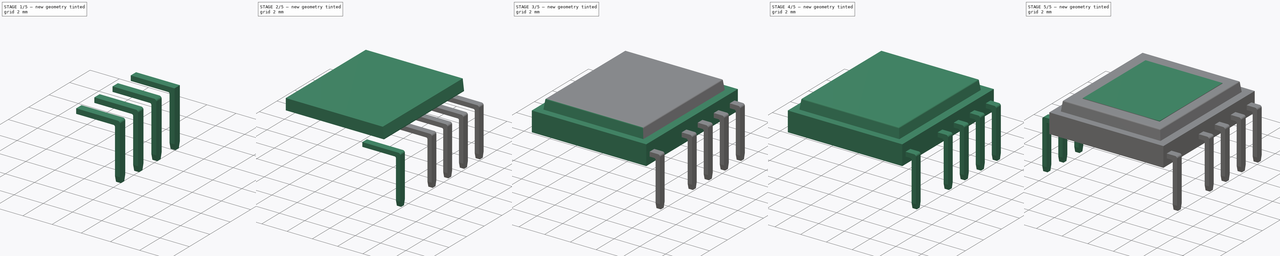
[diagram: build sequence overview — one tinted view per stage of 5, left to right]
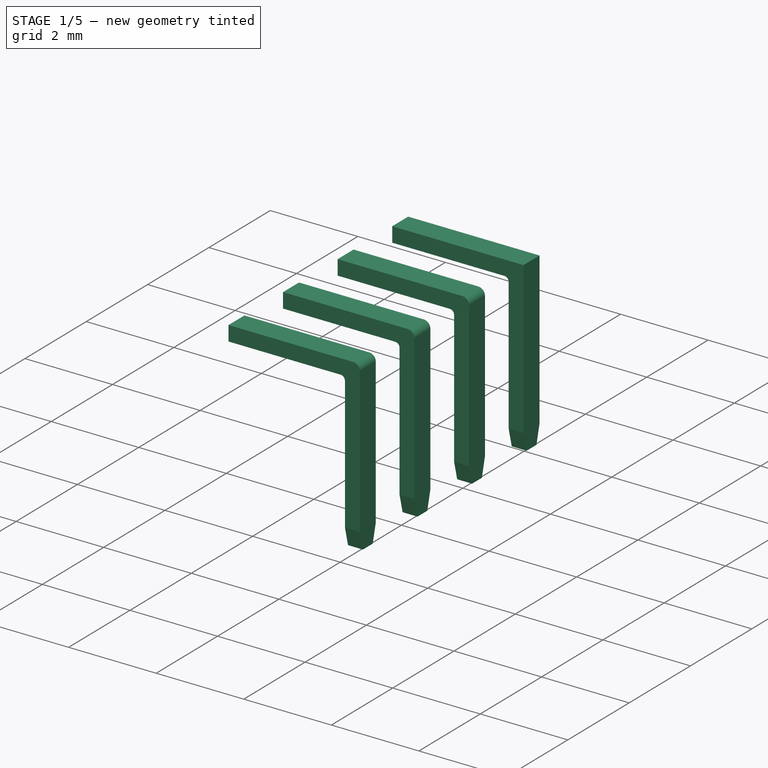
[diagram: stage 1 of 5 — iso view after this stage's code; geometry added in this stage tinted green]
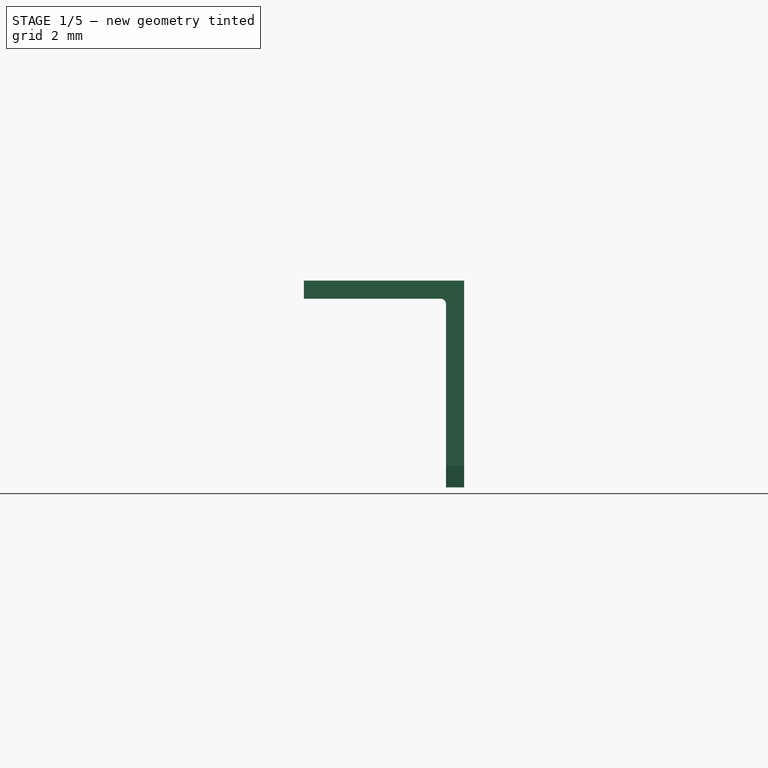
[diagram: stage 1 of 5 — front view after this stage's code; geometry added in this stage tinted green]
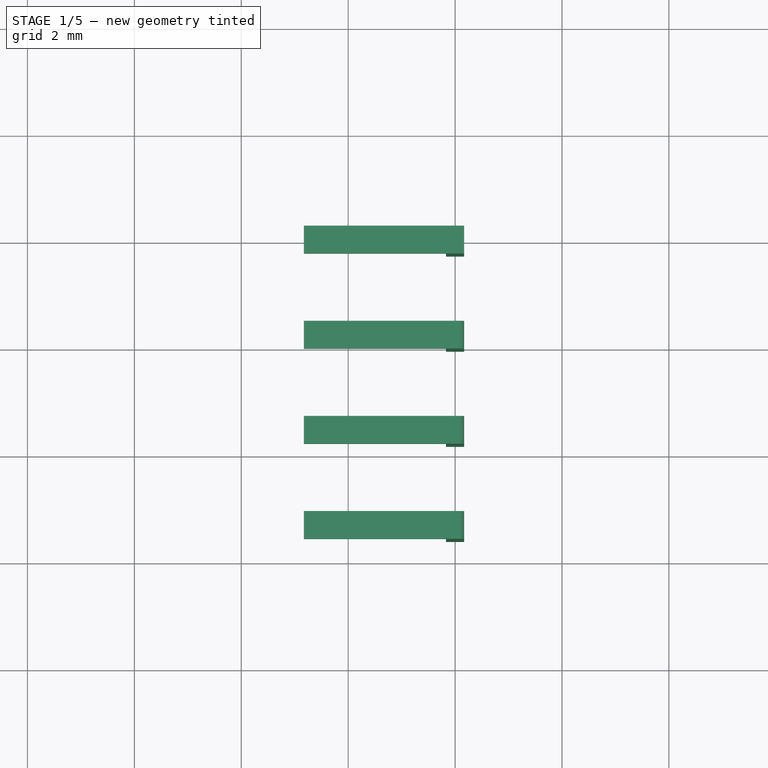
[diagram: stage 1 of 5 — top view after this stage's code; geometry added in this stage tinted green]
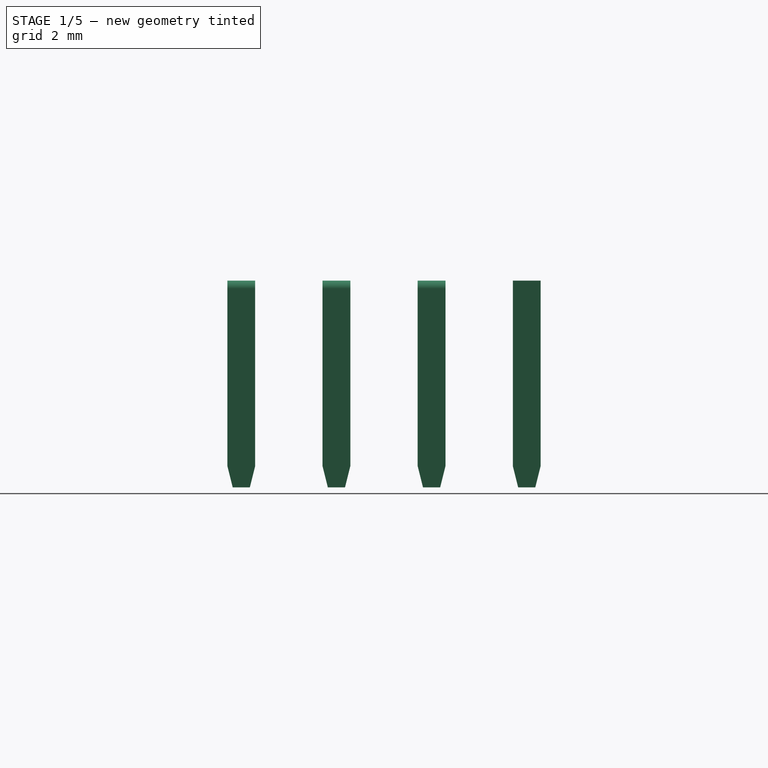
[diagram: stage 1 of 5 — right view after this stage's code; geometry added in this stage tinted green]
FCSTD DOCUMENT  (FreeCAD 0.17R11223 (Git))
Label: PowerIntegrations_eDIP-12B_09
License: All rights reserved
LicenseURL: http://en.wikipedia.org/wiki/All_rights_reserved
objects: Part::Chamfer×18, Part::Fillet×9, Part::Box×8, Part::MultiFuse×5, Part::FeaturePython×2, Sketcher::SketchObject×1, PartDesign::Pad×1, PartDesign::Body×1
note: 46 computed .brp shape members not serialized (recipe doc carries the construction recipe); baked Part::Feature solids carry a one-line shape summary decoded from their .brp

FEATURE [Part::Box] Box001  label="Kub001"
  AttacherType = Attacher::AttachEngine3D
  Height = 3.87
  Length = 0.34
  Placement = pos=(-0.17,-0.26,-3) rot=(0,0,1;0rad)
  Width = 0.52
FEATURE [Part::Box] Box002  label="Kub002"
  AttacherType = Attacher::AttachEngine3D
  Height = 0.34
  Length = 3
  Placement = pos=(-2.83,-0.26,0.53) rot=(0,0,1;0rad)
  Width = 0.52
FEATURE [Part::MultiFuse] Fusion
  Shapes = -> [Box002,Box001]
FEATURE [Part::Fillet] Fillet003
  Base = -> Fusion
  Edges = 1 edges r=0.15: [Edge17]
FEATURE [Part::Fillet] Fillet004
  Base = -> Fillet003
  Edges = 1 edges r=0.1: [Edge23]
FEATURE [Part::Chamfer] Chamfer012
  Base = -> Fillet004
  Edges = 1 edges: [Edge14 r1=0.1 r2=0.4]
FEATURE [Part::Chamfer] Chamfer013
  Base = -> Chamfer012
  Edges = 1 edges: [Edge7 r1=0.1 r2=0.4]
FEATURE [Part::Box] Box007  label="Kub007"
  AttacherType = Attacher::AttachEngine3D
  Height = 0.34
  Length = 3
  Placement = pos=(-2.83,-0.26,0.53) rot=(0,0,1;0rad)
  Width = 0.52
FEATURE [Part::FeaturePython] Array  # Draft array (typed FeaturePython)
  Angle = 360
  ArrayType = 0
  Axis = (0,0,1)
  Base = -> Chamfer013
  Center = (0,0,0)
  Fuse = false
  IntervalAxis = (0,0,0)
  IntervalX = (1,0,0)
  IntervalY = (0,-1.78,0)
  IntervalZ = (0,0,0)
  NumberPolar = 1
  NumberX = 1
  NumberY = 4
  NumberZ = 1
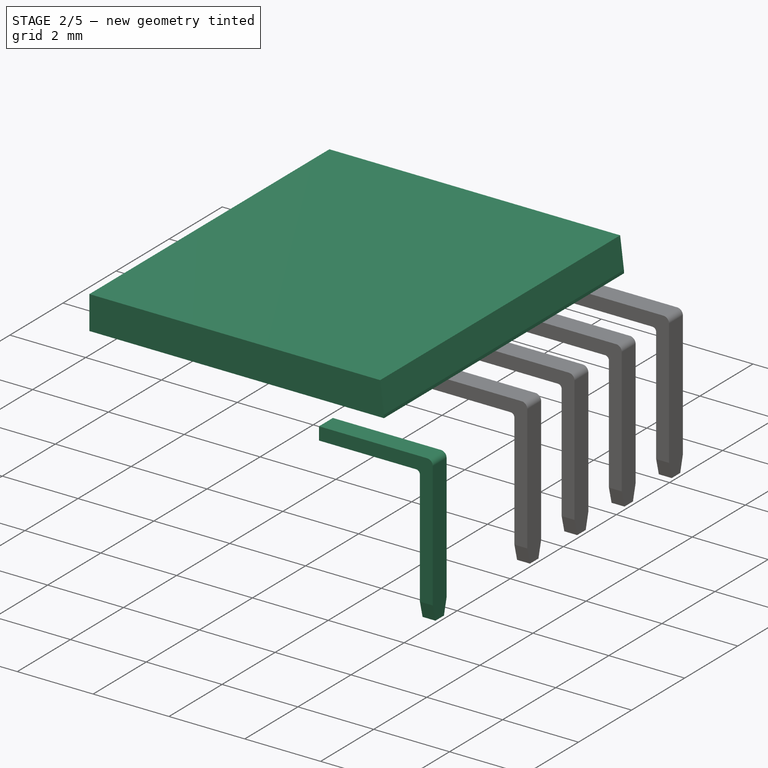
[diagram: stage 2 of 5 — iso view after this stage's code; geometry added in this stage tinted green]
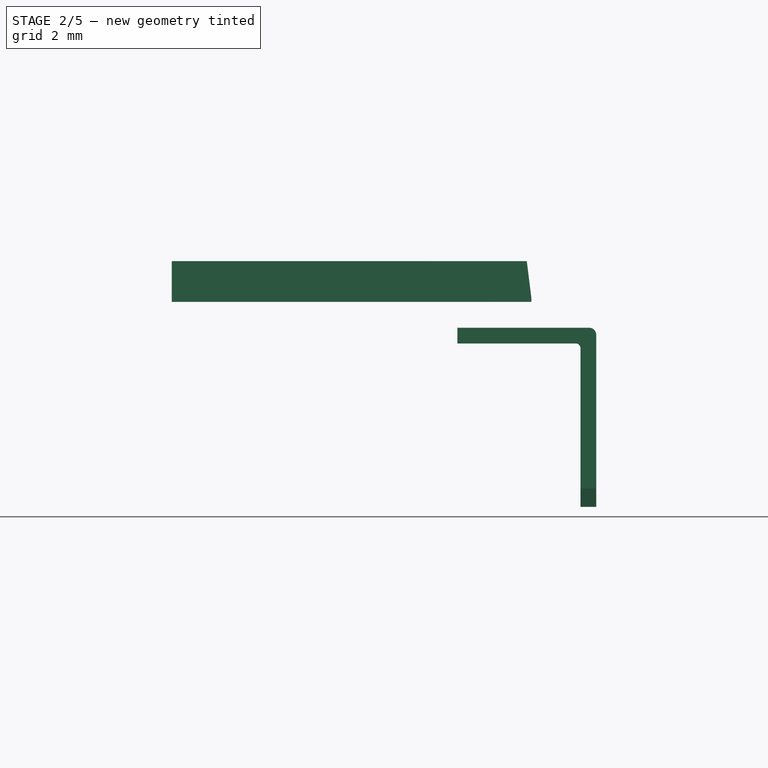
[diagram: stage 2 of 5 — front view after this stage's code; geometry added in this stage tinted green]
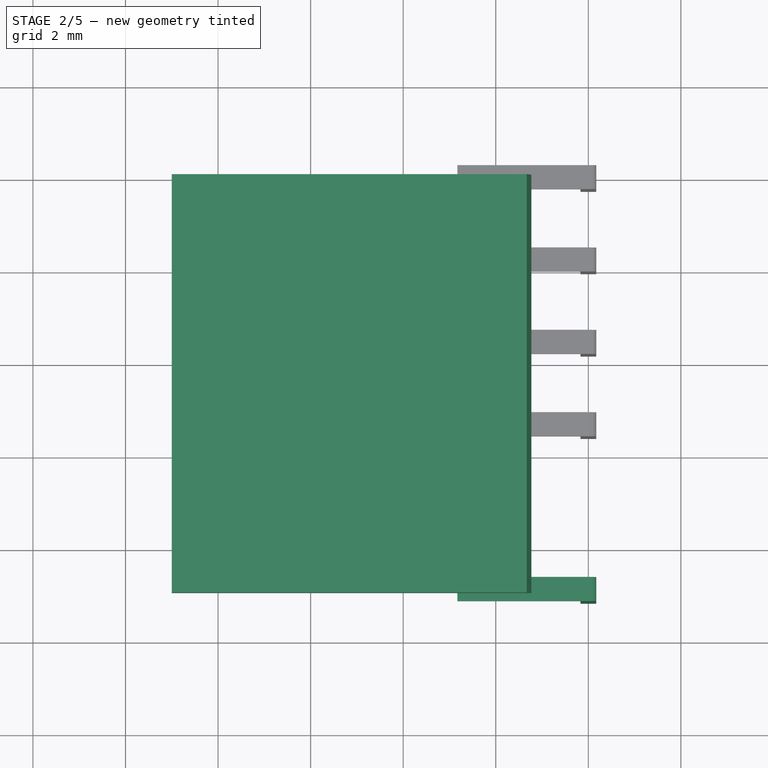
[diagram: stage 2 of 5 — top view after this stage's code; geometry added in this stage tinted green]
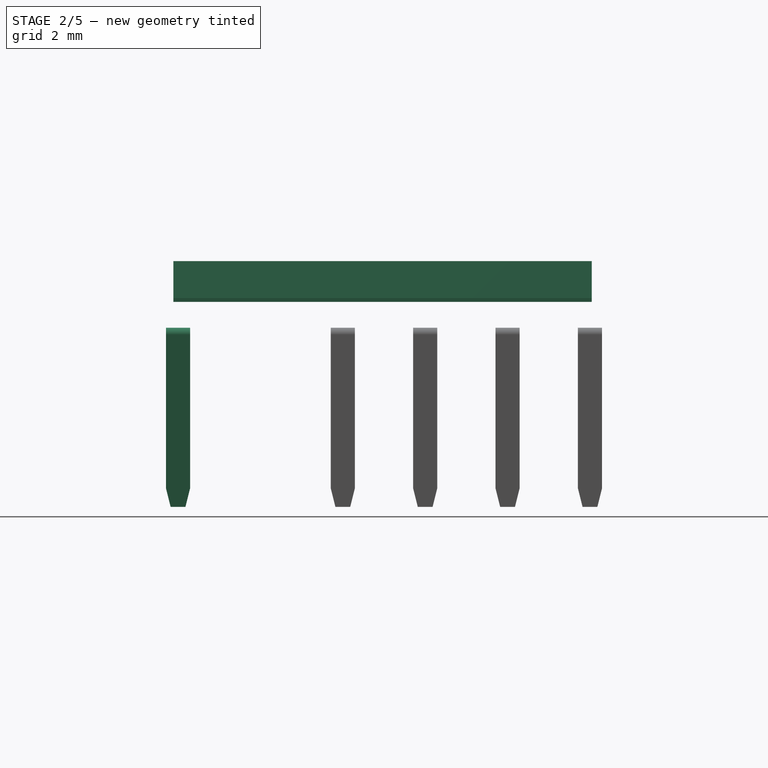
[diagram: stage 2 of 5 — right view after this stage's code; geometry added in this stage tinted green]
FEATURE [PartDesign::Body] Body
  Group = -> [Sketch,Pad]
  Origin = -> BodyOrigin
  Tip = -> Pad
FEATURE [Part::Box] Box  label="Kub"
  AttacherType = Attacher::AttachEngine3D
  Height = 0.88
  Length = 7.77
  Placement = pos=(-9,-9,1.43) rot=(0,0,1;0rad)
  Width = 9.04
FEATURE [Part::Chamfer] Chamfer008
  Base = -> Box
  Edges = 1 edges: [Edge6 r1=0.8 r2=0.1]
FEATURE [Part::Box] Box006  label="Kub006"
  AttacherType = Attacher::AttachEngine3D
  Height = 3.87
  Length = 0.34
  Placement = pos=(-0.17,-0.26,-3) rot=(0,0,1;0rad)
  Width = 0.52
FEATURE [Part::MultiFuse] Fusion004
  Shapes = -> [Box007,Box006]
FEATURE [Part::Fillet] Fillet007
  Base = -> Fusion004
  Edges = 1 edges r=0.15: [Edge17]
FEATURE [Part::Fillet] Fillet008
  Base = -> Fillet007
  Edges = 1 edges r=0.1: [Edge23]
FEATURE [Part::Chamfer] Chamfer016
  Base = -> Fillet008
  Edges = 1 edges: [Edge14 r1=0.1 r2=0.4]
FEATURE [Part::Chamfer] Chamfer017
  Base = -> Chamfer016
  Edges = 1 edges: [Edge7 r1=0.1 r2=0.4]
  Placement = pos=(0,-8.9,0) rot=(0,0,1;0rad)
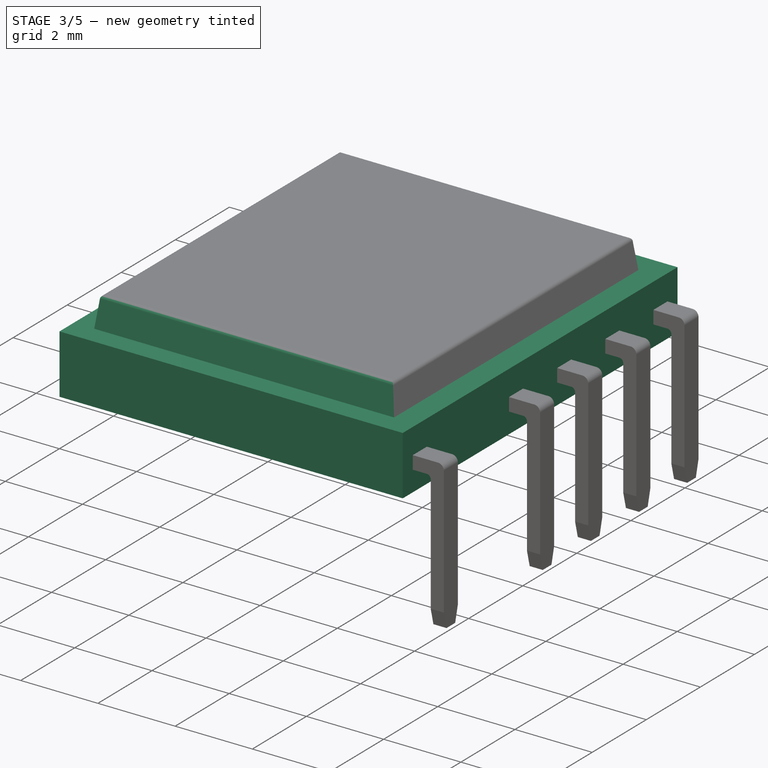
[diagram: stage 3 of 5 — iso view after this stage's code; geometry added in this stage tinted green]
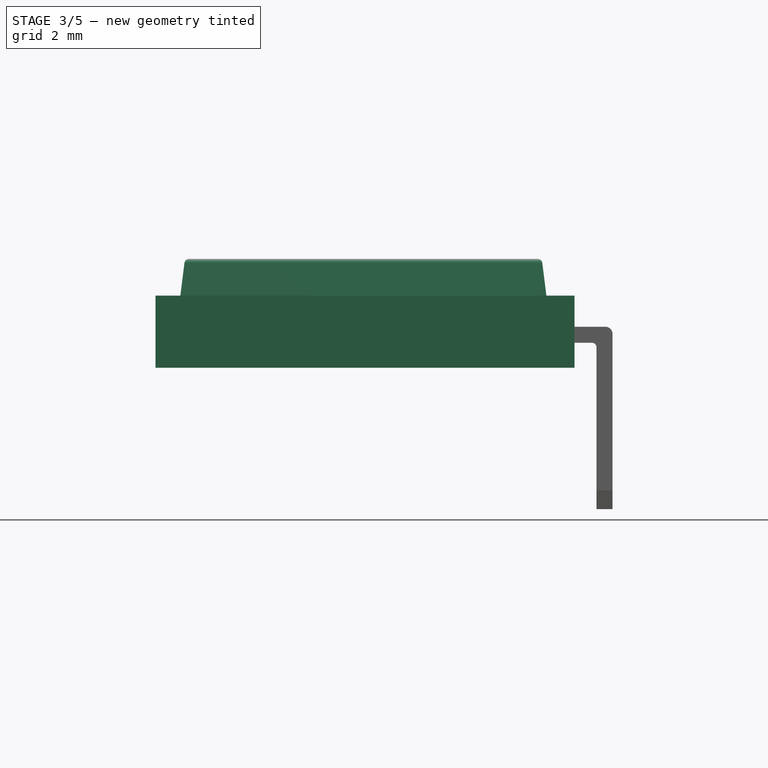
[diagram: stage 3 of 5 — front view after this stage's code; geometry added in this stage tinted green]
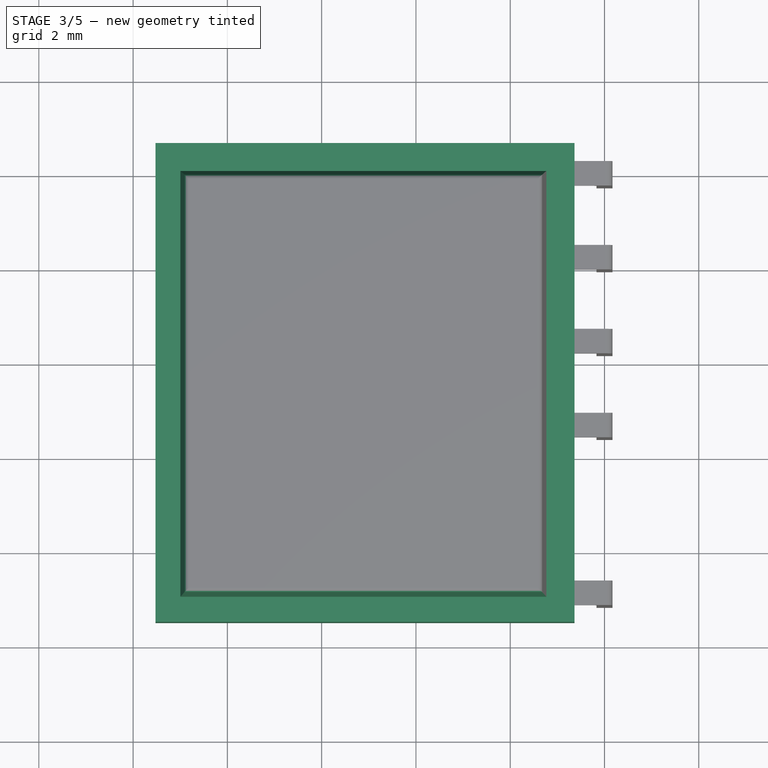
[diagram: stage 3 of 5 — top view after this stage's code; geometry added in this stage tinted green]
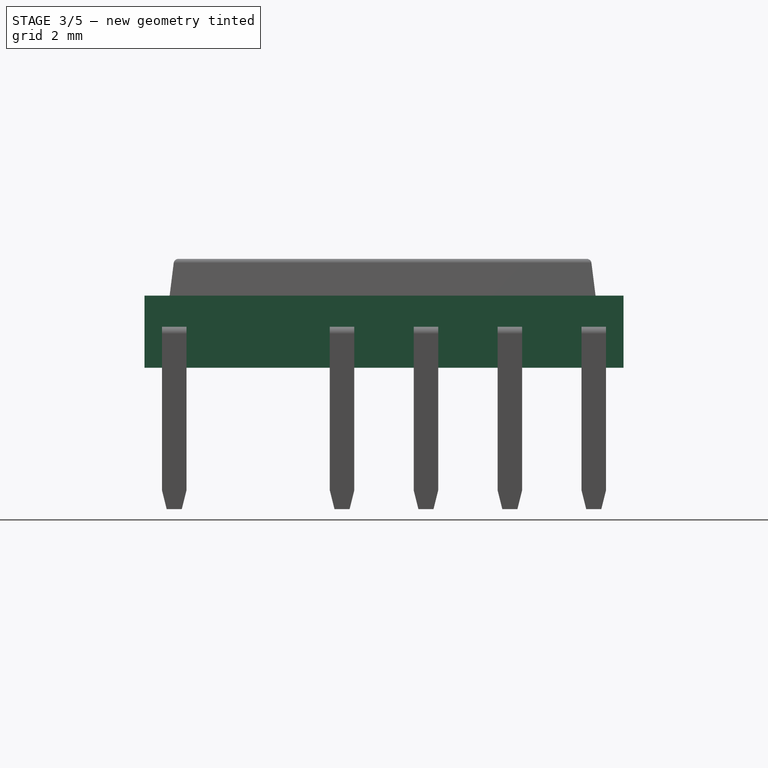
[diagram: stage 3 of 5 — right view after this stage's code; geometry added in this stage tinted green]
FEATURE [Sketcher::SketchObject] Sketch
  MapMode = 5
  Support = -> [XY_Plane]
  sketch-geometry (4):
    g0: LineSegment StartX=-9.525 StartY=0.63 StartZ=0 EndX=-0.635 EndY=0.63 EndZ=0
    g1: LineSegment StartX=-0.635 StartY=0.63 StartZ=0 EndX=-0.635 EndY=-9.53 EndZ=0
    g2: LineSegment StartX=-0.635 StartY=-9.53 StartZ=0 EndX=-9.525 EndY=-9.53 EndZ=0
    g3: LineSegment StartX=-9.525 StartY=-9.53 StartZ=0 EndX=-9.525 EndY=0.63 EndZ=0
  constraints (12):
    c: Coincident(g0,g1)
    c: Coincident(g1,g2)
    c: Coincident(g2,g3)
    c: Coincident(g3,g0)
    c: Horizontal(g0)
    c: Horizontal(g2)
    c: Vertical(g1)
    c: Vertical(g3)
    c: DistanceX(g0,g-1) = 0.635
    c: DistanceX(g0,g0) = 8.89
    c: DistanceY(g2,g0) = 10.16
    c: DistanceY(g-1,g0) = 0.63
FEATURE [PartDesign::Pad] Pad
  Length = 1.53
  Length2 = 100
  Profile = -> Sketch
  Type = 0
FEATURE [Part::Chamfer] Chamfer
  Base = -> Pad
  Edges = 1 edges: [Edge6 r1=0.5 r2=0.1]
FEATURE [Part::Chamfer] Chamfer001
  Base = -> Chamfer
  Edges = 1 edges: [Edge4 r1=0.5 r2=0.1]
FEATURE [Part::Chamfer] Chamfer002
  Base = -> Chamfer001
  Edges = 1 edges: [Edge16 r1=0.1 r2=0.5]
FEATURE [Part::Chamfer] Chamfer009
  Base = -> Chamfer008
  Edges = 1 edges: [Edge13 r1=0.8 r2=0.1]
FEATURE [Part::Chamfer] Chamfer010
  Base = -> Chamfer009
  Edges = 1 edges: [Edge6 r1=0.1 r2=0.8]
FEATURE [Part::Chamfer] Chamfer011
  Base = -> Chamfer010
  Edges = 1 edges: [Edge7 r1=0.1 r2=0.8]
FEATURE [Part::Fillet] Fillet001
  Base = -> Chamfer011
  Edges = 4 edges r=0.1: [Edge1,Edge2,Edge3,Edge4]
FEATURE [Part::MultiFuse] Fusion002
  Shapes = -> [Body,Fillet001]
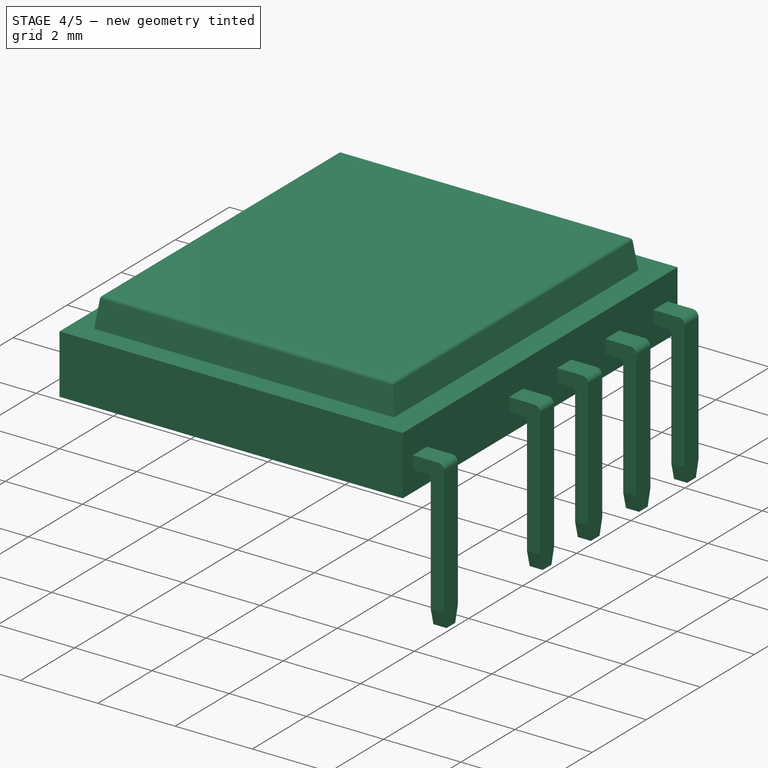
[diagram: stage 4 of 5 — iso view after this stage's code; geometry added in this stage tinted green]
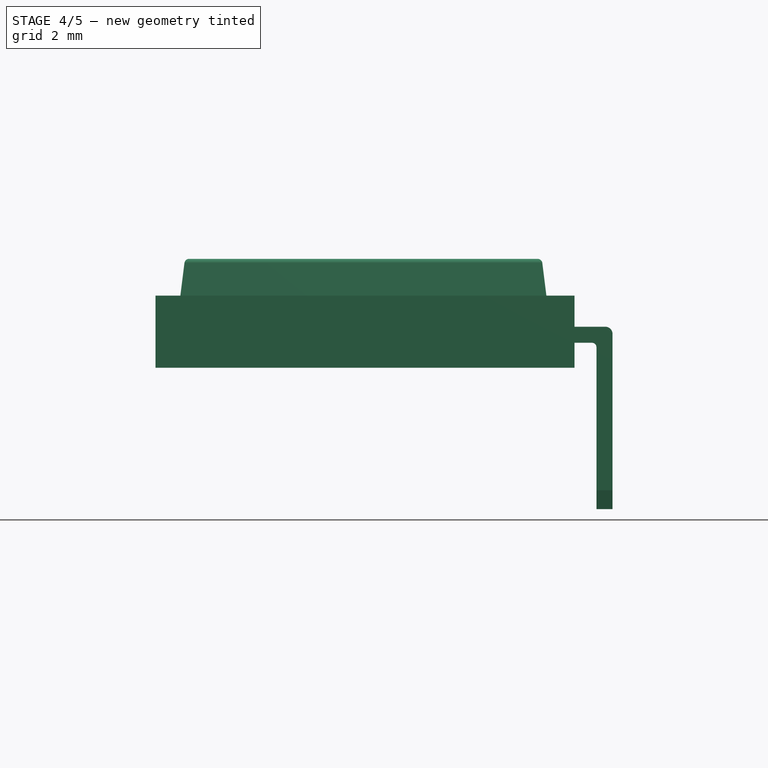
[diagram: stage 4 of 5 — front view after this stage's code; geometry added in this stage tinted green]
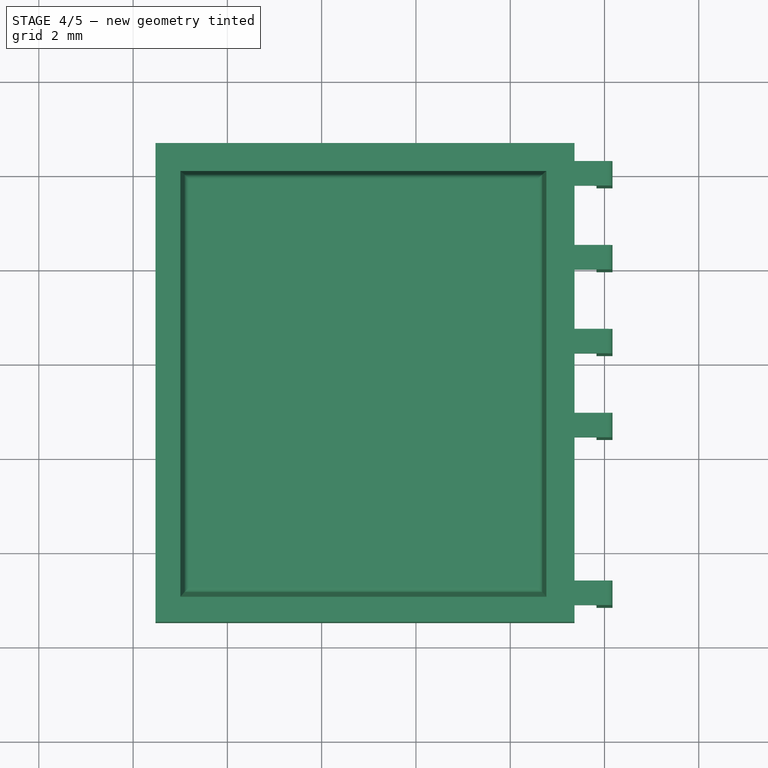
[diagram: stage 4 of 5 — top view after this stage's code; geometry added in this stage tinted green]
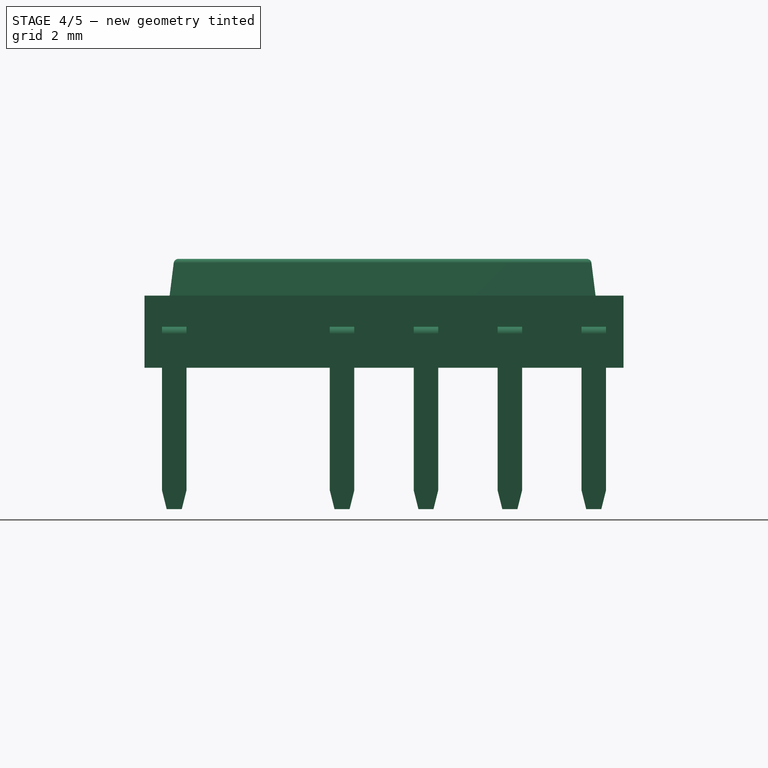
[diagram: stage 4 of 5 — right view after this stage's code; geometry added in this stage tinted green]
FEATURE [Part::Chamfer] Chamfer003
  Base = -> Chamfer002
  Edges = 1 edges: [Edge1 r1=0.5 r2=0.1]
FEATURE [Part::Chamfer] Chamfer004
  Base = -> Chamfer003
  Edges = 1 edges: [Edge9 r1=0.7 r2=0.1]
FEATURE [Part::Chamfer] Chamfer005
  Base = -> Chamfer004
  Edges = 1 edges: [Edge14 r1=0.1 r2=0.7]
FEATURE [Part::Chamfer] Chamfer006
  Base = -> Chamfer005
  Edges = 1 edges: [Edge7 r1=0.1 r2=0.7]
FEATURE [Part::Chamfer] Chamfer007
  Base = -> Chamfer006
  Edges = 1 edges: [Edge4 r1=0.1 r2=0.7]
FEATURE [Part::Fillet] Fillet
  Base = -> Chamfer007
  Edges = 4 edges r=0.02: [Edge21,Edge25,Edge26,Edge28]
FEATURE [Part::Fillet] Fillet002
  Base = -> Fillet
  Edges = 4 edges r=0.1: [Edge26,Edge33,Edge34,Edge35]
FEATURE [Part::MultiFuse] Fusion003
  Shapes = -> [Fusion002,Fillet002]
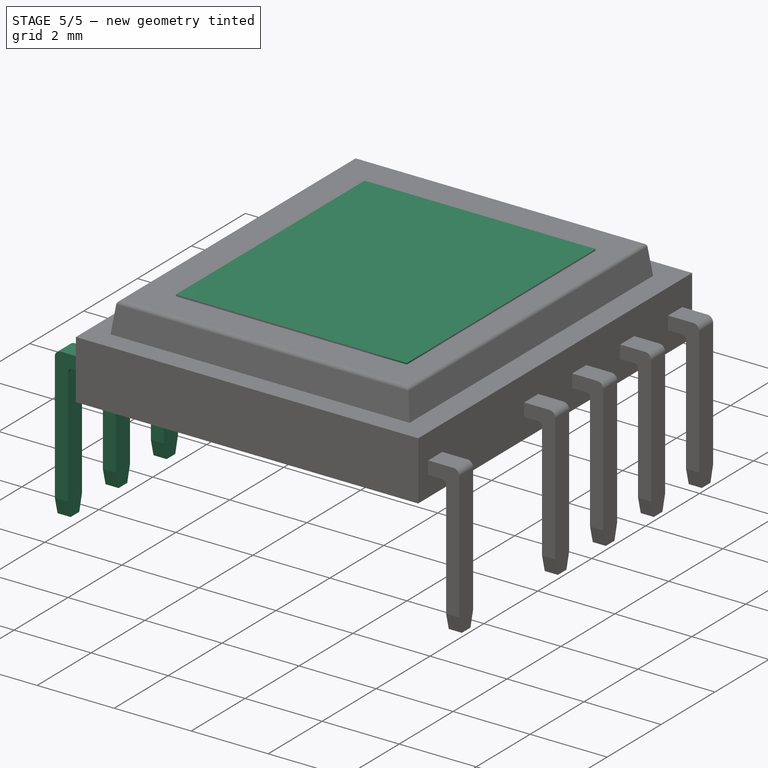
[diagram: stage 5 of 5 — iso view after this stage's code; geometry added in this stage tinted green]
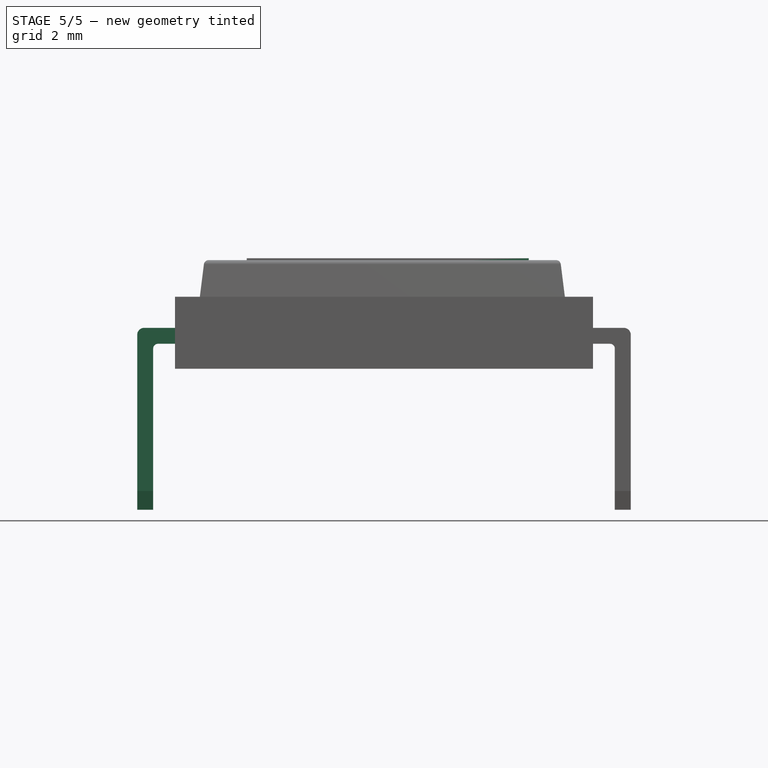
[diagram: stage 5 of 5 — front view after this stage's code; geometry added in this stage tinted green]
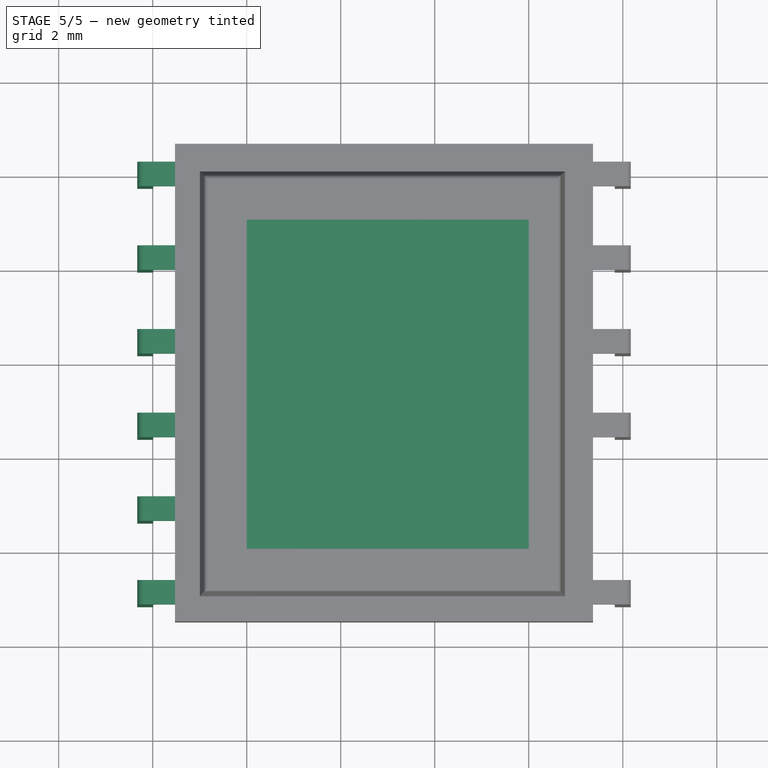
[diagram: stage 5 of 5 — top view after this stage's code; geometry added in this stage tinted green]
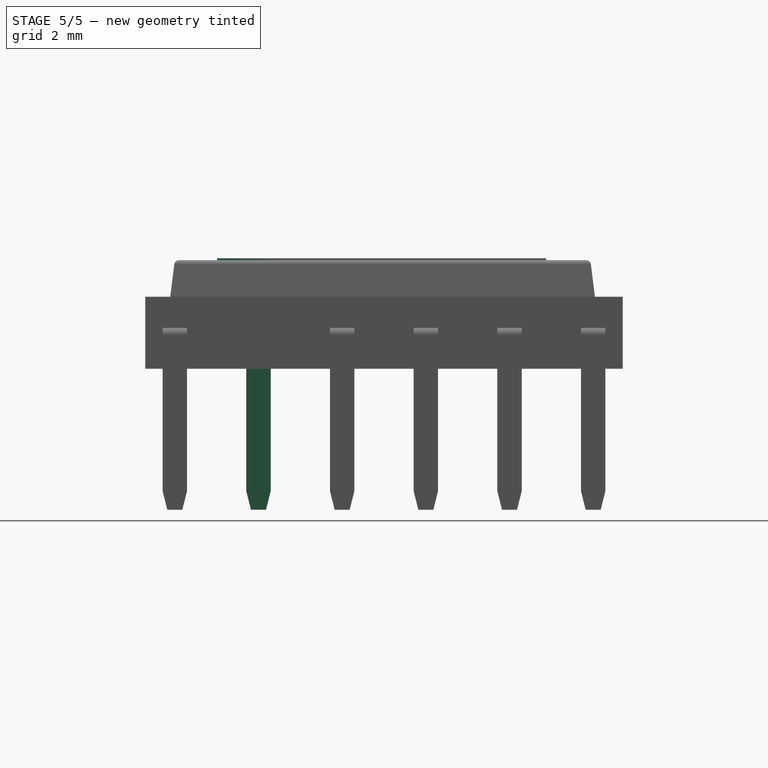
[diagram: stage 5 of 5 — right view after this stage's code; geometry added in this stage tinted green]
FEATURE [Part::Box] Box003  label="Kub003"
  AttacherType = Attacher::AttachEngine3D
  Height = 3.87
  Length = 0.34
  Placement = pos=(-0.17,-0.26,-3) rot=(0,0,1;0rad)
  Width = 0.52
FEATURE [Part::Box] Box004  label="Kub004"
  AttacherType = Attacher::AttachEngine3D
  Height = 0.34
  Length = 3
  Placement = pos=(-2.83,-0.26,0.53) rot=(0,0,1;0rad)
  Width = 0.52
FEATURE [Part::MultiFuse] Fusion001
  Shapes = -> [Box004,Box003]
FEATURE [Part::Fillet] Fillet005
  Base = -> Fusion001
  Edges = 1 edges r=0.15: [Edge17]
FEATURE [Part::Fillet] Fillet006
  Base = -> Fillet005
  Edges = 1 edges r=0.1: [Edge23]
FEATURE [Part::Chamfer] Chamfer014
  Base = -> Fillet006
  Edges = 1 edges: [Edge14 r1=0.1 r2=0.4]
FEATURE [Part::Chamfer] Chamfer015
  Base = -> Chamfer014
  Edges = 1 edges: [Edge7 r1=0.1 r2=0.4]
  Placement = pos=(-10.16,0,0) rot=(0,0,1;3.14159rad)
FEATURE [Part::FeaturePython] Array001  # Draft array (typed FeaturePython)
  Angle = 360
  ArrayType = 0
  Axis = (0,0,1)
  Base = -> Chamfer015
  Center = (0,0,0)
  Fuse = false
  IntervalAxis = (0,0,0)
  IntervalX = (1,0,0)
  IntervalY = (0,-1.78,0)
  IntervalZ = (0,0,0)
  NumberPolar = 1
  NumberX = 1
  NumberY = 6
  NumberZ = 1
FEATURE [Part::Box] Box005  label="Kub005"
  AttacherType = Attacher::AttachEngine3D
  Height = 0.2
  Length = 6
  Placement = pos=(-8,-8,2.15) rot=(0,0,1;0rad)
  Width = 7
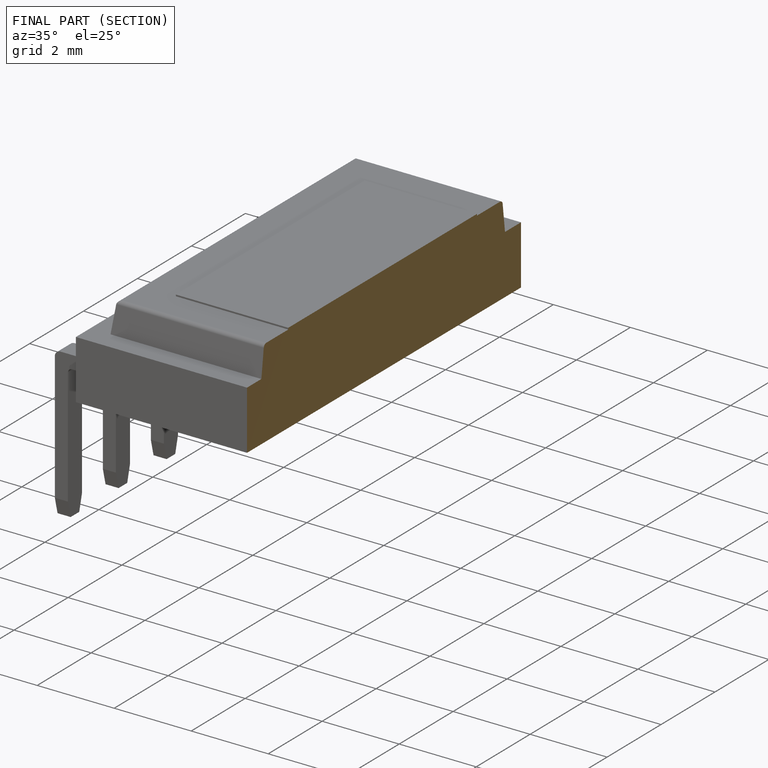
[diagram: finished part — half-section view (interior)]
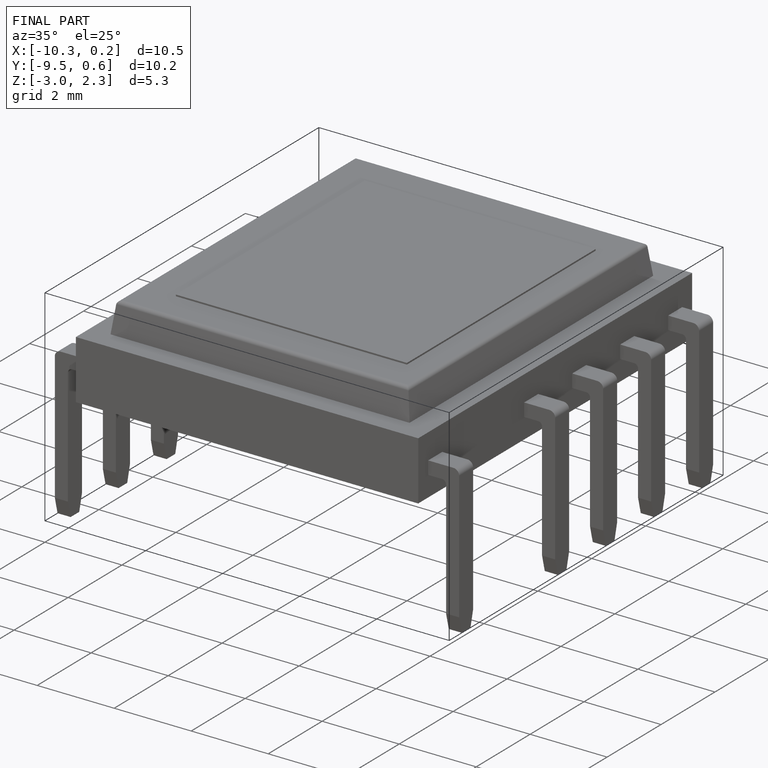
[diagram: finished part — iso view with bounding-box wireframe]
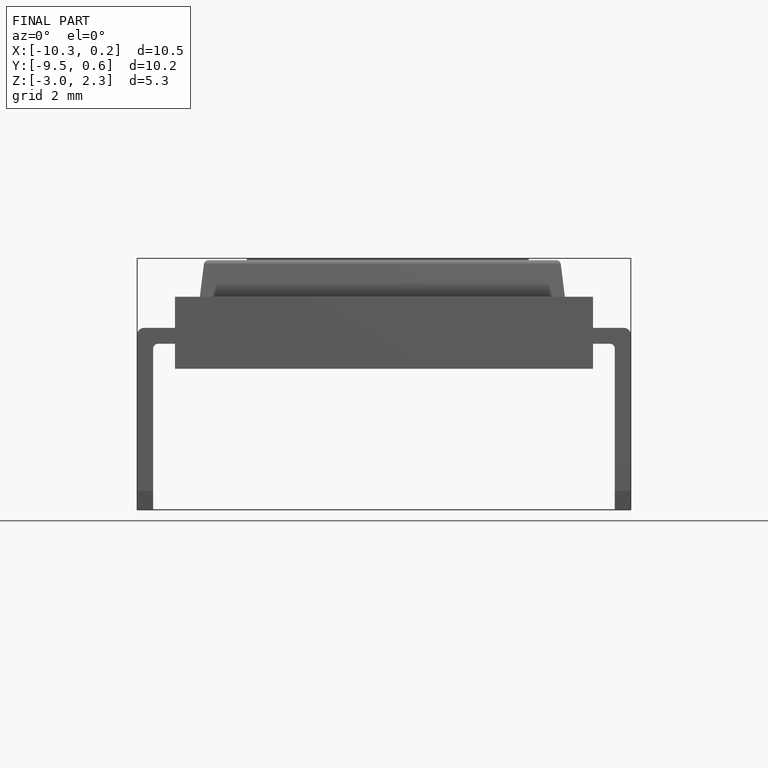
[diagram: finished part — front view with bounding-box wireframe]
